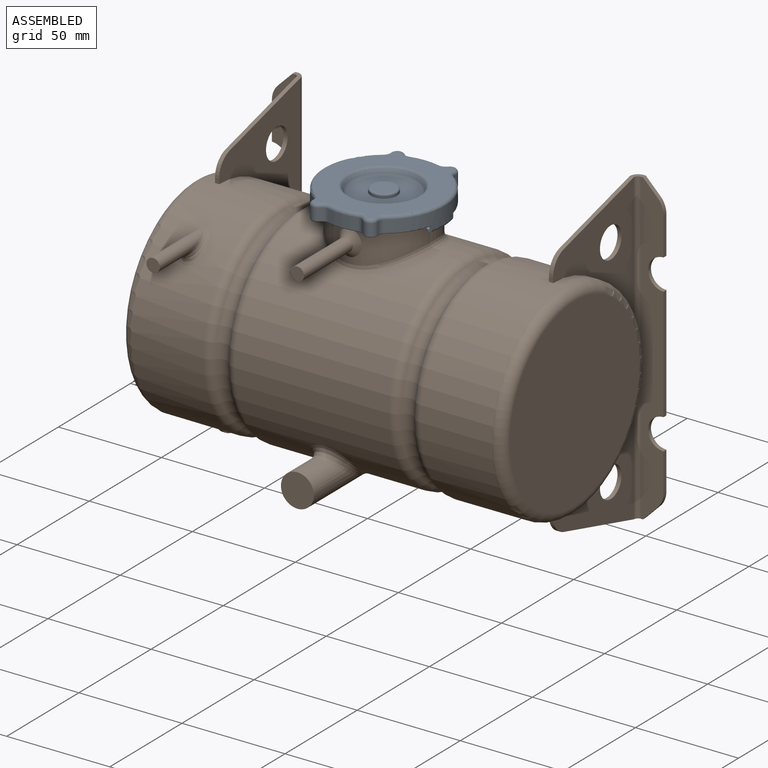
[diagram: assembled view]
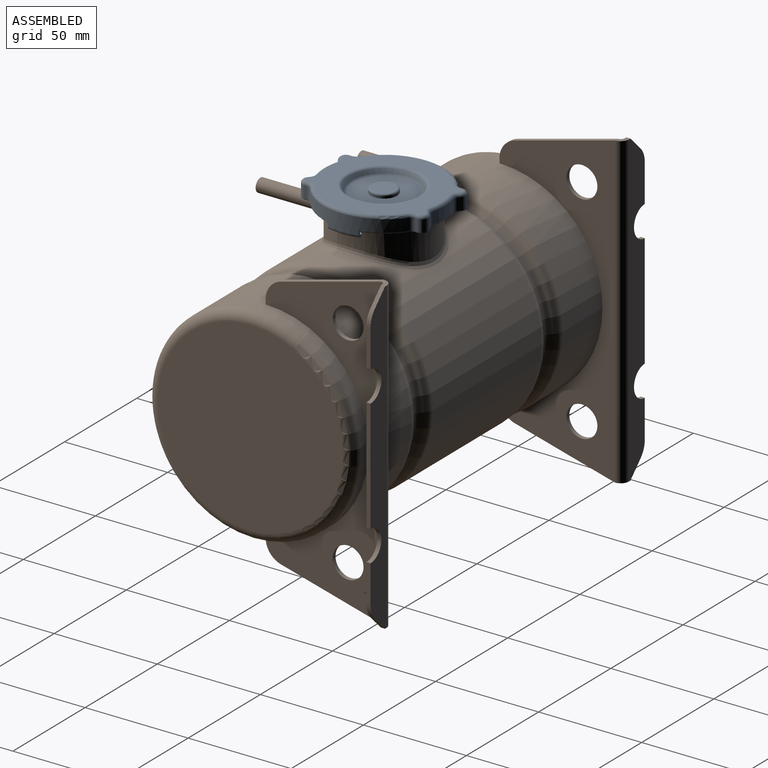
[diagram: assembled view, second angle]
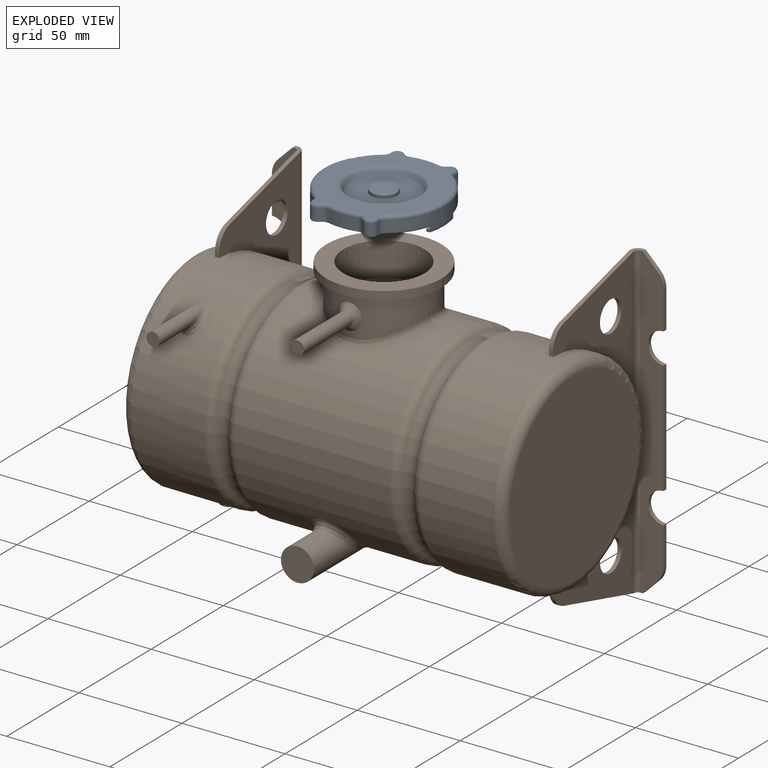
[diagram: exploded view]
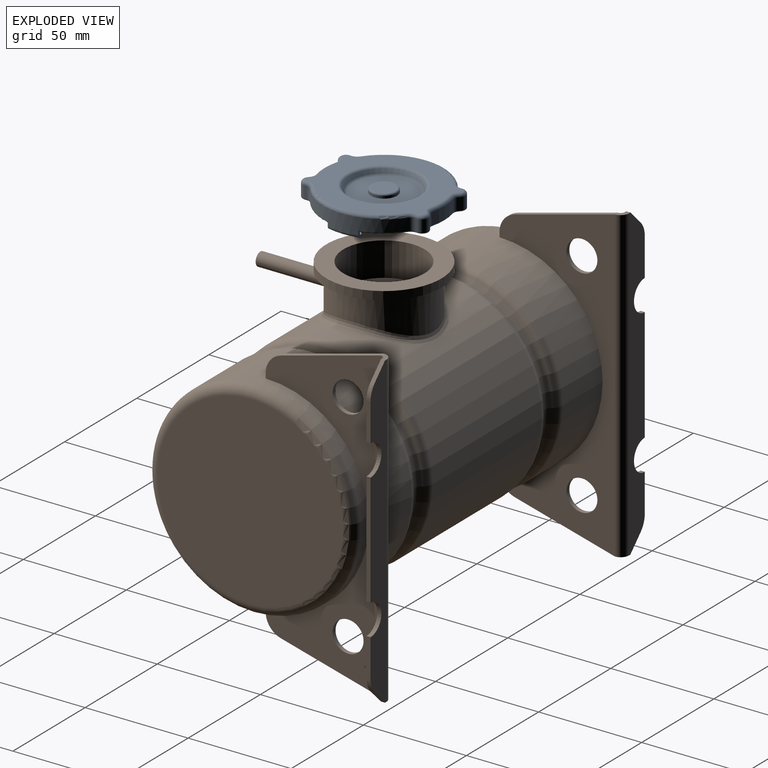
[diagram: exploded view, second angle]
ASSEMBLY  parts=2 mates=2
PART A: 153 faces, bbox 63.8x63.8x11 mm
  f0: torus R=28.82mm, axis (0,0,-1), area 36.2mm2, adj f1,f18,f22,f58
  f1: torus R=3.76mm, axis (0,0,1), area 6.5mm2, adj f0,f2,f23,f57
  f2: cylinder r=0.58mm len=1.17mm, axis (1,0,0), area 2mm2, adj f1,f3,f24,f56
  f3: torus R=2.59mm, axis (0,0,-1), area 10.8mm2, adj f2,f4,f25,f55
  f4: cylinder r=0.58mm len=1.6mm, axis (-0.64,0.77,0), area 2mm2, adj f3,f5,f26,f54
  f5: torus R=3.76mm, axis (0,0,1), area 6.5mm2, adj f4,f6,f27,f53
  f6: torus R=28.82mm, axis (0,0,-1), area 25.8mm2, adj f5,f7,f28,f52
  f7: torus R=3.76mm, axis (0,0,1), area 6.5mm2, adj f6,f8,f29,f51
  f8: cylinder r=0.58mm len=1.6mm, axis (0.64,0.77,0), area 2mm2, adj f7,f9,f30,f50
  f9: torus R=2.59mm, axis (0,0,-1), area 10.8mm2, adj f8,f10,f31,f49
  f10: cylinder r=0.58mm len=1.17mm, axis (-1,0,0), area 2mm2, adj f9,f11,f32,f48
  f11: torus R=3.76mm, axis (0,0,1), area 6.5mm2, adj f10,f12,f33,f47
  f12: torus R=28.82mm, axis (0,0,-1), area 36.2mm2, adj f11,f13,f34,f149
  f13: plane 3.69x2.12mm, normal (1,0,0), area 4mm2, adj f12,f14,f34,f46,f87,f123,f149,f152
  f14: torus R=27.81mm, axis (0,0,-1), area 9.8mm2, adj f13,f34,f87,f124
  f15: torus R=27.81mm, axis (0,0,-1), area 37.5mm2, adj f16,f18,f58,f122
  f16: plane 3.69x2.12mm, normal (-1,0,0), area 4mm2, adj f15,f17,f21,f22,f58,f71,f86,f122
  f17: torus R=27.81mm, axis (0,0,-1), area 9.8mm2, adj f16,f18,f22,f86
  f18: plane 3.69x2.12mm, normal (1,0,0), area 4mm2, adj f0,f15,f17,f19,f22,f58,f86,f122
  f19: cylinder r=1.59mm len=1.93mm, axis (0,0,-1), area 3.3mm2, adj f18,f20,f86,f122
  f20: cylinder r=25.57mm len=10.88mm, axis (0,0,1), area 12.8mm2, adj f19,f21,f86,f122
  f21: cylinder r=1.59mm len=1.93mm, axis (0,0,-1), area 3.3mm2, adj f16,f20,f86,f122
  f22: cylinder r=28.23mm len=45.68mm, axis (0,0,-1), area 335.4mm2, adj f0,f16,f17,f18,f23,f45,f71,f88
  f23: cylinder r=4.34mm len=5.77mm, axis (0,0,1), area 23.6mm2, adj f1,f22,f24,f89
  f24: plane 5.77x1.1mm, normal (0,1,0), area 6.3mm2, adj f2,f23,f25,f91
  f25: cylinder r=2.01mm len=5.77mm, axis (0,0,-1), area 26.3mm2, adj f3,f24,f26,f93
  f26: plane 5.77x0.84mm, normal (-0.77,-0.64,0), area 6.3mm2, adj f4,f25,f27,f95
  f27: cylinder r=4.34mm len=5.77mm, axis (0,0,1), area 23.6mm2, adj f5,f26,f28,f97
  f28: cylinder r=28.23mm len=13.65mm, axis (0,0,-1), area 79.5mm2, adj f6,f27,f29,f99
  f29: cylinder r=4.34mm len=5.77mm, axis (0,0,1), area 23.6mm2, adj f7,f28,f30,f101
  f30: plane 5.77x0.84mm, normal (-0.77,0.64,0), area 6.3mm2, adj f8,f29,f31,f103
  f31: cylinder r=2.01mm len=5.77mm, axis (0,0,-1), area 26.3mm2, adj f9,f30,f32,f105
  f32: plane 5.77x1.1mm, normal (0,-1,0), area 6.3mm2, adj f10,f31,f33,f107
  f33: cylinder r=4.34mm len=5.77mm, axis (0,0,1), area 23.6mm2, adj f11,f32,f34,f109
  f34: cylinder r=28.23mm len=45.68mm, axis (0,0,-1), area 335.4mm2, adj f12,f13,f14,f33,f35,f59,f111,f124
  f35: cylinder r=4.34mm len=5.77mm, axis (0,0,1), area 23.6mm2, adj f34,f36,f60,f110
  f36: plane 5.77x1.1mm, normal (0,-1,0), area 6.3mm2, adj f35,f37,f61,f108
  f37: cylinder r=2.01mm len=5.77mm, axis (0,0,-1), area 26.3mm2, adj f36,f38,f62,f106
  f38: plane 5.77x0.84mm, normal (0.77,0.64,0), area 6.3mm2, adj f37,f39,f63,f104
  f39: cylinder r=4.34mm len=5.77mm, axis (0,0,1), area 23.6mm2, adj f38,f40,f64,f102
  f40: cylinder r=28.23mm len=13.65mm, axis (0,0,-1), area 79.5mm2, adj f39,f41,f65,f100
  f41: cylinder r=4.34mm len=5.77mm, axis (0,0,1), area 23.6mm2, adj f40,f42,f66,f98
  f42: plane 5.77x0.84mm, normal (0.77,-0.64,0), area 6.3mm2, adj f41,f43,f67,f96
  f43: cylinder r=2.01mm len=5.77mm, axis (0,0,-1), area 26.3mm2, adj f42,f44,f68,f94
  f44: plane 5.77x1.1mm, normal (0,1,0), area 6.3mm2, adj f43,f45,f69,f92
  f45: cylinder r=4.34mm len=5.77mm, axis (0,0,1), area 23.6mm2, adj f22,f44,f70,f90
  f46: plane 14.73x2.87mm, normal (0,0,1), area 31.7mm2, adj f13,f123,f124,f150,f151,f152
  f47: cylinder r=3.17mm len=5.77mm, axis (0,0,1), area 17.3mm2, adj f11,f48,f127,f149
  f48: plane 5.77x1.1mm, normal (0,1,0), area 6.3mm2, adj f10,f47,f49,f129
  f49: cylinder r=3.17mm len=5.77mm, axis (0,0,-1), area 41.5mm2, adj f9,f48,f50,f131
  f50: plane 5.77x0.84mm, normal (0.77,-0.64,0), area 6.3mm2, adj f8,f49,f51,f133
  f51: cylinder r=3.17mm len=5.77mm, axis (0,0,1), area 17.3mm2, adj f7,f50,f52,f135
  f52: cylinder r=29.4mm len=14.22mm, axis (0,0,-1), area 82.8mm2, adj f6,f51,f53,f137
  f53: cylinder r=3.17mm len=5.77mm, axis (0,0,1), area 17.3mm2, adj f5,f52,f54,f139
  f54: plane 5.77x0.84mm, normal (0.77,0.64,0), area 6.3mm2, adj f4,f53,f55,f141
  f55: cylinder r=3.17mm len=5.77mm, axis (0,0,-1), area 41.5mm2, adj f3,f54,f56,f143
  f56: plane 5.77x1.1mm, normal (0,-1,0), area 6.3mm2, adj f2,f55,f57,f145
  f57: cylinder r=3.17mm len=5.77mm, axis (0,0,1), area 17.3mm2, adj f1,f56,f58,f147
  f58: cylinder r=29.4mm len=47.57mm, axis (0,0,-1), area 348mm2, adj f0,f15,f16,f18,f57,f71,f72,f148
  f59: torus R=28.82mm, axis (0,0,-1), area 36.2mm2, adj f34,f60,f124,f149
  f60: torus R=3.76mm, axis (0,0,1), area 6.5mm2, adj f35,f59,f61,f82
  f61: cylinder r=0.58mm len=1.17mm, axis (-1,0,0), area 2mm2, adj f36,f60,f62,f81
  f62: torus R=2.59mm, axis (0,0,-1), area 10.8mm2, adj f37,f61,f63,f80
  f63: cylinder r=0.58mm len=1.6mm, axis (0.64,-0.77,0), area 2mm2, adj f38,f62,f64,f79
  f64: torus R=3.76mm, axis (0,0,1), area 6.5mm2, adj f39,f63,f65,f78
  f65: torus R=28.82mm, axis (0,0,-1), area 25.8mm2, adj f40,f64,f66,f77
  f66: torus R=3.76mm, axis (0,0,1), area 6.5mm2, adj f41,f65,f67,f76
  f67: cylinder r=0.58mm len=1.6mm, axis (-0.64,-0.77,0), area 2mm2, adj f42,f66,f68,f75
  f68: torus R=2.59mm, axis (0,0,-1), area 10.8mm2, adj f43,f67,f69,f74
  f69: cylinder r=0.58mm len=1.17mm, axis (1,0,0), area 2mm2, adj f44,f68,f70,f73
  f70: torus R=3.76mm, axis (0,0,1), area 6.5mm2, adj f45,f69,f71,f72
  f71: torus R=28.82mm, axis (0,0,-1), area 36.2mm2, adj f16,f22,f58,f70
  f72: cylinder r=3.17mm len=5.77mm, axis (0,0,1), area 17.3mm2, adj f58,f70,f73,f146
  f73: plane 5.77x1.1mm, normal (0,-1,0), area 6.3mm2, adj f69,f72,f74,f144
  f74: cylinder r=3.17mm len=5.77mm, axis (0,0,-1), area 41.5mm2, adj f68,f73,f75,f142
  f75: plane 5.77x0.84mm, normal (-0.77,0.64,0), area 6.3mm2, adj f67,f74,f76,f140
  f76: cylinder r=3.17mm len=5.77mm, axis (0,0,1), area 17.3mm2, adj f66,f75,f77,f138
  f77: cylinder r=29.4mm len=14.22mm, axis (0,0,-1), area 82.8mm2, adj f65,f76,f78,f136
  f78: cylinder r=3.17mm len=5.77mm, axis (0,0,1), area 17.3mm2, adj f64,f77,f79,f134
  f79: plane 5.77x0.84mm, normal (-0.77,-0.64,0), area 6.3mm2, adj f63,f78,f80,f132
  f80: cylinder r=3.17mm len=5.77mm, axis (0,0,-1), area 41.5mm2, adj f62,f79,f81,f130
  f81: plane 5.77x1.1mm, normal (0,1,0), area 6.3mm2, adj f61,f80,f82,f128
  f82: cylinder r=3.17mm len=5.77mm, axis (0,0,1), area 17.3mm2, adj f60,f81,f126,f149
  f83: torus R=5.51mm, axis (0,0,1), area 47.1mm2, adj f84,f85
  f84: cylinder r=6.3mm len=12.6mm, axis (0,0,1), area 45mm2, adj f83,f119
  f85: plane 11.01x11.01mm, normal (0,0,-1), area 95.2mm2, adj f83
  f86: plane 14.73x2.87mm, normal (0,0,-1), area 31.7mm2, adj f16,f17,f18,f19,f20,f21
  f87: plane 14.73x2.87mm, normal (0,0,-1), area 31.7mm2, adj f13,f14,f124,f150,f151,f152
  f88: torus R=27.81mm, axis (0,0,-1), area 34.8mm2, adj f22,f89,f90,f112
  f89: torus R=4.76mm, axis (0,0,1), area 2.8mm2, adj f23,f88,f91,f112
  f90: torus R=4.76mm, axis (0,0,1), area 2.8mm2, adj f45,f88,f92,f112
  f91: cylinder r=0.42mm len=1.1mm, axis (1,0,0), area 0.7mm2, adj f24,f89,f93,f112
  f92: cylinder r=0.42mm len=1.1mm, axis (1,0,0), area 0.7mm2, adj f44,f90,f94,f112
  f93: torus R=1.59mm, axis (0,0,-1), area 2.8mm2, adj f25,f91,f95,f112
  f94: torus R=1.59mm, axis (0,0,-1), area 2.8mm2, adj f43,f92,f96,f112
  f95: cylinder r=0.42mm len=1.11mm, axis (-0.64,0.77,0), area 0.7mm2, adj f26,f93,f97,f112
  f96: cylinder r=0.42mm len=1.11mm, axis (-0.64,-0.77,0), area 0.7mm2, adj f42,f94,f98,f112
  f97: torus R=4.76mm, axis (0,0,1), area 2.8mm2, adj f27,f95,f99,f112
  f98: torus R=4.76mm, axis (0,0,1), area 2.8mm2, adj f41,f96,f100,f112
  f99: torus R=27.81mm, axis (0,0,-1), area 9mm2, adj f28,f97,f101,f112
  f100: torus R=27.81mm, axis (0,0,-1), area 9mm2, adj f40,f98,f102,f112
  f101: torus R=4.76mm, axis (0,0,1), area 2.8mm2, adj f29,f99,f103,f112
  f102: torus R=4.76mm, axis (0,0,1), area 2.8mm2, adj f39,f100,f104,f112
  f103: cylinder r=0.42mm len=1.11mm, axis (0.64,0.77,0), area 0.7mm2, adj f30,f101,f105,f112
  f104: cylinder r=0.42mm len=1.11mm, axis (0.64,-0.77,0), area 0.7mm2, adj f38,f102,f106,f112
  f105: torus R=1.59mm, axis (0,0,-1), area 2.8mm2, adj f31,f103,f107,f112
  f106: torus R=1.59mm, axis (0,0,-1), area 2.8mm2, adj f37,f104,f108,f112
  f107: cylinder r=0.42mm len=1.1mm, axis (-1,0,0), area 0.7mm2, adj f32,f105,f109,f112
  f108: cylinder r=0.42mm len=1.1mm, axis (-1,0,0), area 0.7mm2, adj f36,f106,f110,f112
  f109: torus R=4.76mm, axis (0,0,1), area 2.8mm2, adj f33,f107,f111,f112
  f110: torus R=4.76mm, axis (0,0,1), area 2.8mm2, adj f35,f108,f111,f112
  f111: torus R=27.81mm, axis (0,0,-1), area 34.8mm2, adj f34,f109,f110,f112
  f112: plane 58.08x55.63mm, normal (0,0,1), area 1440.1mm2, adj f88,f89,f90,f91,f92,f93,f94,f95
  f113: torus R=18.38mm, axis (0,0,1), area 50.1mm2, adj f112,f115
  f114: plane 29.43x29.43mm, normal (0,0,1), area 680.1mm2, adj f116
  f115: cone r=18.47mm half-angle=30deg, axis (0,0,-1), area 202.2mm2, adj f113,f116
  f116: torus R=14.71mm, axis (0,0,1), area 290.7mm2, adj f114,f115
  f117: torus R=14.71mm, axis (0,0,1), area 161.6mm2, adj f118,f119
  f118: cone r=17.46mm half-angle=30deg, axis (0,0,-1), area 190.6mm2, adj f117,f120
  f119: plane 29.43x29.43mm, normal (0,0,-1), area 555.4mm2, adj f84,f117
  f120: torus R=18.38mm, axis (0,0,1), area 184.1mm2, adj f118,f121
  f121: plane 58.08x55.63mm, normal (0,0,-1), area 1440.1mm2, adj f120,f125,f126,f127,f128,f129,f130,f131
  f122: plane 14.73x2.87mm, normal (0,0,1), area 31.7mm2, adj f15,f16,f18,f19,f20,f21
  f123: torus R=27.81mm, axis (0,0,-1), area 37.5mm2, adj f13,f46,f124,f149
  f124: plane 3.69x2.12mm, normal (-1,0,0), area 4mm2, adj f14,f34,f46,f59,f87,f123,f149,f150
  f125: torus R=27.81mm, axis (0,0,-1), area 135.5mm2, adj f121,f126,f127,f149
  f126: torus R=4.76mm, axis (0,0,1), area 8.8mm2, adj f82,f121,f125,f128
  f127: torus R=4.76mm, axis (0,0,1), area 8.8mm2, adj f47,f121,f125,f129
  f128: cylinder r=1.59mm len=1.59mm, axis (-1,0,0), area 2.7mm2, adj f81,f121,f126,f130
  f129: cylinder r=1.59mm len=1.59mm, axis (-1,0,0), area 2.7mm2, adj f48,f121,f127,f131
  f130: torus R=1.59mm, axis (0,0,-1), area 14.7mm2, adj f80,f121,f128,f132
  f131: torus R=1.59mm, axis (0,0,-1), area 14.7mm2, adj f49,f121,f129,f133
  f132: cylinder r=1.59mm len=1.92mm, axis (0.64,-0.77,0), area 2.7mm2, adj f79,f121,f130,f134
  f133: cylinder r=1.59mm len=1.92mm, axis (0.64,0.77,0), area 2.7mm2, adj f50,f121,f131,f135
  f134: torus R=4.76mm, axis (0,0,1), area 8.8mm2, adj f78,f121,f132,f136
  f135: torus R=4.76mm, axis (0,0,1), area 8.8mm2, adj f51,f121,f133,f137
  f136: torus R=27.81mm, axis (0,0,-1), area 35.1mm2, adj f77,f121,f134,f138
  f137: torus R=27.81mm, axis (0,0,-1), area 35.1mm2, adj f52,f121,f135,f139
  f138: torus R=4.76mm, axis (0,0,1), area 8.8mm2, adj f76,f121,f136,f140
  f139: torus R=4.76mm, axis (0,0,1), area 8.8mm2, adj f53,f121,f137,f141
  f140: cylinder r=1.59mm len=1.92mm, axis (-0.64,-0.77,0), area 2.7mm2, adj f75,f121,f138,f142
  f141: cylinder r=1.59mm len=1.92mm, axis (-0.64,0.77,0), area 2.7mm2, adj f54,f121,f139,f143
  f142: torus R=1.59mm, axis (0,0,-1), area 14.7mm2, adj f74,f121,f140,f144
  f143: torus R=1.59mm, axis (0,0,-1), area 14.7mm2, adj f55,f121,f141,f145
  f144: cylinder r=1.59mm len=1.59mm, axis (1,0,0), area 2.7mm2, adj f73,f121,f142,f146
  f145: cylinder r=1.59mm len=1.59mm, axis (1,0,0), area 2.7mm2, adj f56,f121,f143,f147
  f146: torus R=4.76mm, axis (0,0,1), area 8.8mm2, adj f72,f121,f144,f148
  f147: torus R=4.76mm, axis (0,0,1), area 8.8mm2, adj f57,f121,f145,f148
  f148: torus R=27.81mm, axis (0,0,-1), area 135.5mm2, adj f58,f121,f146,f147
  f149: cylinder r=29.4mm len=47.57mm, axis (0,0,-1), area 348mm2, adj f12,f13,f47,f59,f82,f123,f124,f125
  f150: cylinder r=1.59mm len=1.93mm, axis (0,0,-1), area 3.3mm2, adj f46,f87,f124,f151
  f151: cylinder r=25.57mm len=10.88mm, axis (0,0,1), area 12.8mm2, adj f46,f87,f150,f152
  f152: cylinder r=1.59mm len=1.93mm, axis (0,0,-1), area 3.3mm2, adj f13,f46,f87,f151
PART B: 79 faces, bbox 190x120x150 mm
  f0: cylinder r=50mm len=100mm, axis (-1,0,0), area 20735mm2, adj f32,f35,f76,f77
  f1: plane 55x2mm, normal (1,0,0), area 110mm2, adj f10,f12,f24,f25
  f2: plane 18.36x2mm, normal (1,0,0), area 36.7mm2, adj f10,f12,f20,f24
  f3: plane 2.33x2mm, normal (0,-1,0), area 4.7mm2, adj f6,f8,f23,f26
  f4: plane 5x4mm, normal (0,0,1), area 11.4mm2, adj f9,f10,f12,f13,f17,f18
  f5: plane 5x4mm, normal (0,0,-1), area 11.4mm2, adj f9,f10,f12,f13,f14,f19
  f6: plane 150x56mm, normal (1,0,0), area 3257mm2, adj f3,f7,f13,f14,f15,f16,f17,f22
  f7: plane 2.33x2mm, normal (0,-1,0), area 4.7mm2, adj f6,f8,f22,f26
  f8: plane 150x56mm, normal (-1,0,0), area 3257mm2, adj f3,f7,f9,f14,f15,f16,f17,f22
  f9: cylinder r=4mm len=150mm, axis (0,0,-1), area 942.5mm2, adj f4,f5,f8,f10
  f10: plane 150x11mm, normal (0,1,0), area 1369mm2, adj f1,f2,f4,f5,f9,f11,f18,f19
  f11: plane 18.36x2mm, normal (1,0,0), area 36.7mm2, adj f10,f12,f21,f25
  f12: plane 150x11mm, normal (0,-1,0), area 1369mm2, adj f1,f2,f4,f5,f11,f13,f18,f19
  f13: cylinder r=2mm len=150mm, axis (0,0,-1), area 471.2mm2, adj f4,f5,f6,f12
  f14: plane 48.59x13.01mm, normal (0,-0.26,-0.97), area 100.6mm2, adj f5,f6,f8,f23
  f15: cylinder r=7.5mm len=15mm, axis (-1,0,0), area 94.2mm2, adj f6,f8
  f16: cylinder r=7.5mm len=15mm, axis (-1,0,0), area 94.2mm2, adj f6,f8
  f17: plane 48.59x13.01mm, normal (0,-0.26,0.97), area 100.6mm2, adj f4,f6,f8,f22
  f18: plane 7.07x7.07mm, normal (0.71,0,0.71), area 20mm2, adj f4,f10,f12,f20
  f19: plane 7.07x7.07mm, normal (0.71,0,-0.71), area 20mm2, adj f5,f10,f12,f21
  f20: cylinder r=10mm len=7.07mm, axis (0,-1,0), area 15.7mm2, adj f2,f10,f12,f18
  f21: cylinder r=10mm len=7.07mm, axis (0,-1,0), area 15.7mm2, adj f10,f11,f12,f19
  f22: cylinder r=10mm len=9.66mm, axis (1,0,0), area 26.2mm2, adj f6,f7,f8,f17
  f23: cylinder r=10mm len=9.66mm, axis (1,0,0), area 26.2mm2, adj f3,f6,f8,f14
  f24: cylinder r=7.5mm len=15mm, axis (0,1,0), area 47.1mm2, adj f1,f2,f10,f12
  f25: cylinder r=7.5mm len=15mm, axis (0,1,0), area 47.1mm2, adj f1,f10,f11,f12
  f26: cylinder r=50mm len=100mm, axis (-1,0,0), area 10686.7mm2, adj f3,f6,f7,f8,f33,f37
  f27: plane 90x90mm, normal (1,0,0), area 6361.7mm2, adj f37
  f28: torus R=50mm, axis (-1,0,0), area 2300.3mm2, adj f32,f33
  f29: torus R=50mm, axis (-1,0,0), area 2300.3mm2, adj f34,f35
  f30: plane 90x90mm, normal (-1,0,0), area 6361.7mm2, adj f36
  f31: cylinder r=50mm len=100mm, axis (-1,0,0), area 10501.8mm2, adj f34,f36,f40,f43,f44,f45,f75
  f32: torus R=45mm, axis (1,0,0), area 1518.5mm2, adj f0,f28
  f33: torus R=45mm, axis (-1,0,0), area 1518.5mm2, adj f26,f28
  f34: torus R=45mm, axis (1,0,0), area 1518.5mm2, adj f29,f31
  f35: torus R=45mm, axis (-1,0,0), area 1518.5mm2, adj f0,f29
  f36: torus R=45mm, axis (1,0,0), area 2377.7mm2, adj f30,f31
  f37: torus R=45mm, axis (1,0,0), area 2377.7mm2, adj f26,f27
  f38: plane 55x2mm, normal (-1,0,0), area 110mm2, adj f47,f49,f61,f62
  f39: plane 18.36x2mm, normal (-1,0,0), area 36.7mm2, adj f47,f49,f57,f61
  f40: plane 2.33x2mm, normal (0,-1,0), area 4.7mm2, adj f31,f43,f45,f60
  f41: plane 5x4mm, normal (0,0,1), area 11.4mm2, adj f46,f47,f49,f50,f54,f55
  f42: plane 5x4mm, normal (0,0,-1), area 11.4mm2, adj f46,f47,f49,f50,f51,f56
  f43: plane 150x56mm, normal (-1,0,0), area 3257mm2, adj f31,f40,f44,f50,f51,f52,f53,f54
  f44: plane 2.33x2mm, normal (0,-1,0), area 4.7mm2, adj f31,f43,f45,f59
  f45: plane 150x56mm, normal (1,0,0), area 3257mm2, adj f31,f40,f44,f46,f51,f52,f53,f54
  f46: cylinder r=4mm len=150mm, axis (0,0,-1), area 942.5mm2, adj f41,f42,f45,f47
  f47: plane 150x11mm, normal (0,1,0), area 1369mm2, adj f38,f39,f41,f42,f46,f48,f55,f56
  f48: plane 18.36x2mm, normal (-1,0,0), area 36.7mm2, adj f47,f49,f58,f62
  f49: plane 150x11mm, normal (0,-1,0), area 1369mm2, adj f38,f39,f41,f42,f48,f50,f55,f56
  f50: cylinder r=2mm len=150mm, axis (0,0,-1), area 471.2mm2, adj f41,f42,f43,f49
  f51: plane 48.59x13.01mm, normal (0,-0.26,-0.97), area 100.6mm2, adj f42,f43,f45,f60
  f52: cylinder r=7.5mm len=15mm, axis (1,0,0), area 94.2mm2, adj f43,f45
  f53: cylinder r=7.5mm len=15mm, axis (1,0,0), area 94.2mm2, adj f43,f45
  f54: plane 48.59x13.01mm, normal (0,-0.26,0.97), area 100.6mm2, adj f41,f43,f45,f59
  f55: plane 7.07x7.07mm, normal (-0.71,0,0.71), area 20mm2, adj f41,f47,f49,f57
  f56: plane 7.07x7.07mm, normal (-0.71,0,-0.71), area 20mm2, adj f42,f47,f49,f58
  f57: cylinder r=10mm len=7.07mm, axis (0,-1,0), area 15.7mm2, adj f39,f47,f49,f55
  f58: cylinder r=10mm len=7.07mm, axis (0,-1,0), area 15.7mm2, adj f47,f48,f49,f56
  f59: cylinder r=10mm len=9.66mm, axis (-1,0,0), area 26.2mm2, adj f43,f44,f45,f54
  f60: cylinder r=10mm len=9.66mm, axis (-1,0,0), area 26.2mm2, adj f40,f43,f45,f51
  f61: cylinder r=7.5mm len=15mm, axis (0,1,0), area 47.1mm2, adj f38,f39,f47,f49
  f62: cylinder r=7.5mm len=15mm, axis (0,1,0), area 47.1mm2, adj f38,f47,f48,f49
  f63: cylinder r=24mm len=48mm, axis (0,0,-1), area 2397.4mm2, adj f66,f77,f78
  f64: plane 56x56mm, normal (0,0,1), area 1241.9mm2, adj f65,f68
  f65: cylinder r=28mm len=56mm, axis (0,0,-1), area 703.7mm2, adj f64,f66
  f66: plane 56x56mm, normal (0,0,-1), area 653.5mm2, adj f63,f65
  f67: plane 39.43x39.43mm, normal (0,0,1), area 1221.1mm2, adj f68
  f68: cylinder r=19.72mm len=39.43mm, axis (0,0,-1), area 2033.5mm2, adj f64,f67
  f69: plane 16x16mm, normal (0,-1,0), area 201.1mm2, adj f70
  f70: cylinder r=8mm len=45.58mm, axis (0,-1,0), area 1392.2mm2, adj f69,f76
  f71: plane 6.5x6.5mm, normal (0,-1,0), area 33.2mm2, adj f72
  f72: cylinder r=3.25mm len=34.12mm, axis (0,-1,0), area 529.2mm2, adj f71,f75
  f73: plane 6.5x6.5mm, normal (0,-1,0), area 33.2mm2, adj f74
  f74: cylinder r=3.25mm len=33mm, axis (0,-1,0), area 673.9mm2, adj f73,f78
  f75: bspline ~16.46x12.51mm, area 167.8mm2, adj f31,f72
  f76: bspline ~30.76x22.01mm, area 330.9mm2, adj f0,f70
  f77: bspline ~54.01x50.95mm, area 621.3mm2, adj f0,f63
  f78: bspline ~12.5x11.11mm, area 115.1mm2, adj f63,f74
PLACE A rot(axis=(0.71,-0.71,0),180deg) t=(0,-60,71.17)mm
PLACE B at identity fixed
MATE cylindrical B.f63 <-> A.f0  axis (0,0,-1) through (0,-60,55.7)mm
MATE planar B.f63 <-> A.f15  axis (0,0,1) through (0,-60,70)mm
